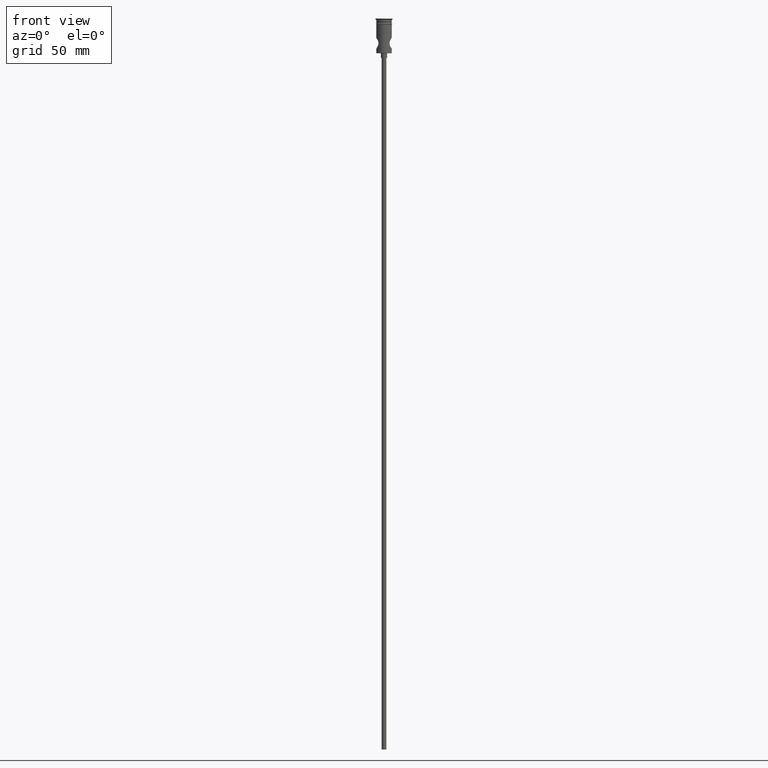
[diagram: clean part render]
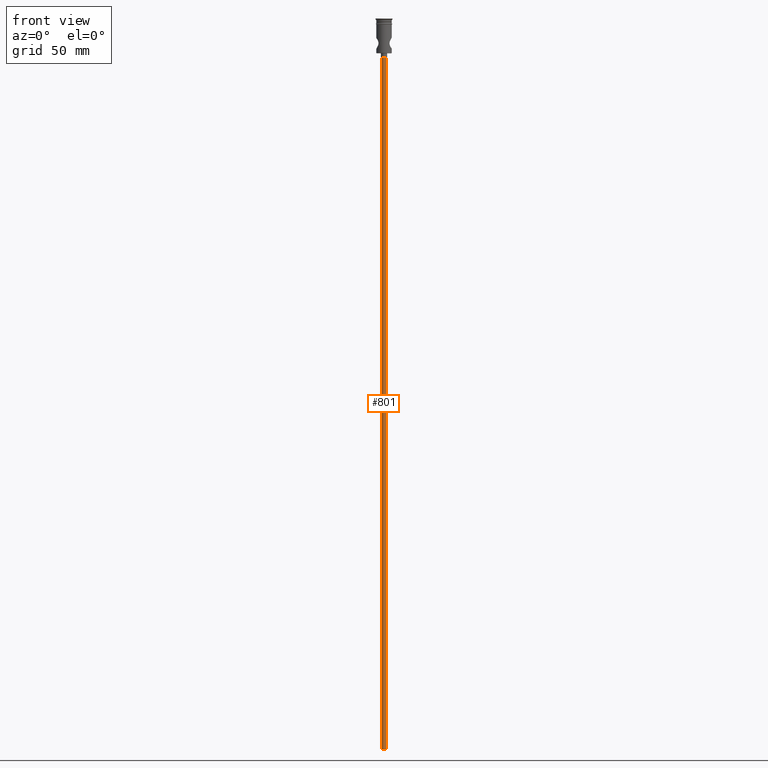
[diagram: same view with one face highlighted and labeled with its STEP entity id]
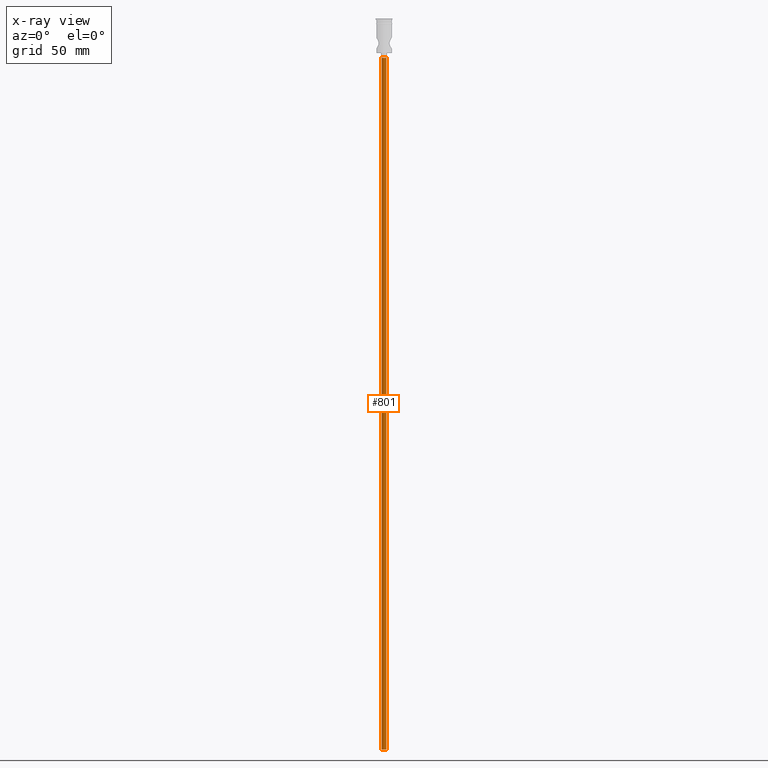
[diagram: x-ray of the same camera — body ghosted, the highlighted face saturated]
A machine part, front view. The second image highlights one B-rep face of the part: STEP entity #801.
The next image is the same camera in x-ray: the body ghosted, the highlighted face saturated — about 0% of this face is hidden behind the body in this view.
In plain terms, the highlighted cylindrical surface (edge-blend (fillet) strip) has radius 1.5 mm, axis along (-0, -0, 1).
Its self-contained STEP definition (entity closure, byte-faithful):
#4 = CARTESIAN_POINT ( 'NONE',  ( 0.000000000000000000, 0.000000000000000000, -472.5000000000000568 ) ) ;
#37 = CARTESIAN_POINT ( 'NONE',  ( 1.500000000000000222, 0.000000000000000000, -25.50000000000000000 ) ) ;
#99 = DIRECTION ( 'NONE',  ( -0.000000000000000000, -0.000000000000000000, 1.000000000000000000 ) ) ;
#107 = ORIENTED_EDGE ( 'NONE', *, *, #970, .F. ) ;
#149 = DIRECTION ( 'NONE',  ( -0.000000000000000000, -0.000000000000000000, 1.000000000000000000 ) ) ;
#224 = DIRECTION ( 'NONE',  ( 0.000000000000000000, 0.000000000000000000, -1.000000000000000000 ) ) ;
#278 = DIRECTION ( 'NONE',  ( -1.000000000000000000, 0.000000000000000000, 0.000000000000000000 ) ) ;
#344 = CARTESIAN_POINT ( 'NONE',  ( 0.000000000000000000, 0.000000000000000000, -472.5000000000000568 ) ) ;
#353 = VERTEX_POINT ( 'NONE', #373 ) ;
#356 = ORIENTED_EDGE ( 'NONE', *, *, #1077, .T. ) ;
#359 = VECTOR ( 'NONE', #1246, 1000.000000000000000 ) ;
#373 = CARTESIAN_POINT ( 'NONE',  ( 1.500000000000000222, 0.000000000000000000, -472.5000000000000568 ) ) ;
#438 = VERTEX_POINT ( 'NONE', #752 ) ;
#479 = ORIENTED_EDGE ( 'NONE', *, *, #1189, .T. ) ;
#542 = EDGE_CURVE ( 'NONE', #353, #438, #1435, .T. ) ;
#558 = FACE_OUTER_BOUND ( 'NONE', #1444, .T. ) ;
#581 = DIRECTION ( 'NONE',  ( -1.000000000000000000, 0.000000000000000000, 0.000000000000000000 ) ) ;
#675 = AXIS2_PLACEMENT_3D ( 'NONE', #4, #99, #777 ) ;
#712 = LINE ( 'NONE', #791, #359 ) ;
#752 = CARTESIAN_POINT ( 'NONE',  ( -1.500000000000000222, 1.836970198721030181E-16, -472.5000000000000568 ) ) ;
#755 = ORIENTED_EDGE ( 'NONE', *, *, #542, .F. ) ;
#777 = DIRECTION ( 'NONE',  ( 1.000000000000000000, 0.000000000000000000, 0.000000000000000000 ) ) ;
#780 = CARTESIAN_POINT ( 'NONE',  ( 0.000000000000000000, 0.000000000000000000, -25.50000000000000000 ) ) ;
#787 = AXIS2_PLACEMENT_3D ( 'NONE', #780, #224, #581 ) ;
#791 = CARTESIAN_POINT ( 'NONE',  ( 1.500000000000000222, 0.000000000000000000, -472.5000000000000568 ) ) ;
#801 = ADVANCED_FACE ( 'NONE', ( #558 ), #877, .T. ) ;
#807 = AXIS2_PLACEMENT_3D ( 'NONE', #344, #1073, #278 ) ;
#877 = CYLINDRICAL_SURFACE ( 'NONE', #675, 1.500000000000000222 ) ;
#926 = VERTEX_POINT ( 'NONE', #37 ) ;
#970 = EDGE_CURVE ( 'NONE', #438, #1122, #1157, .T. ) ;
#1073 = DIRECTION ( 'NONE',  ( 0.000000000000000000, 0.000000000000000000, -1.000000000000000000 ) ) ;
#1077 = EDGE_CURVE ( 'NONE', #353, #926, #712, .T. ) ;
#1122 = VERTEX_POINT ( 'NONE', #1159 ) ;
#1157 = LINE ( 'NONE', #1387, #1377 ) ;
#1159 = CARTESIAN_POINT ( 'NONE',  ( -1.500000000000000222, 1.836970198721030181E-16, -25.50000000000000000 ) ) ;
#1189 = EDGE_CURVE ( 'NONE', #926, #1122, #1417, .T. ) ;
#1246 = DIRECTION ( 'NONE',  ( -0.000000000000000000, -0.000000000000000000, 1.000000000000000000 ) ) ;
#1377 = VECTOR ( 'NONE', #149, 1000.000000000000000 ) ;
#1387 = CARTESIAN_POINT ( 'NONE',  ( -1.500000000000000222, 1.836970198721030181E-16, -472.5000000000000568 ) ) ;
#1417 = CIRCLE ( 'NONE', #787, 1.500000000000000222 ) ;
#1435 = CIRCLE ( 'NONE', #807, 1.500000000000000222 ) ;
#1444 = EDGE_LOOP ( 'NONE', ( #107, #755, #356, #479 ) ) ;